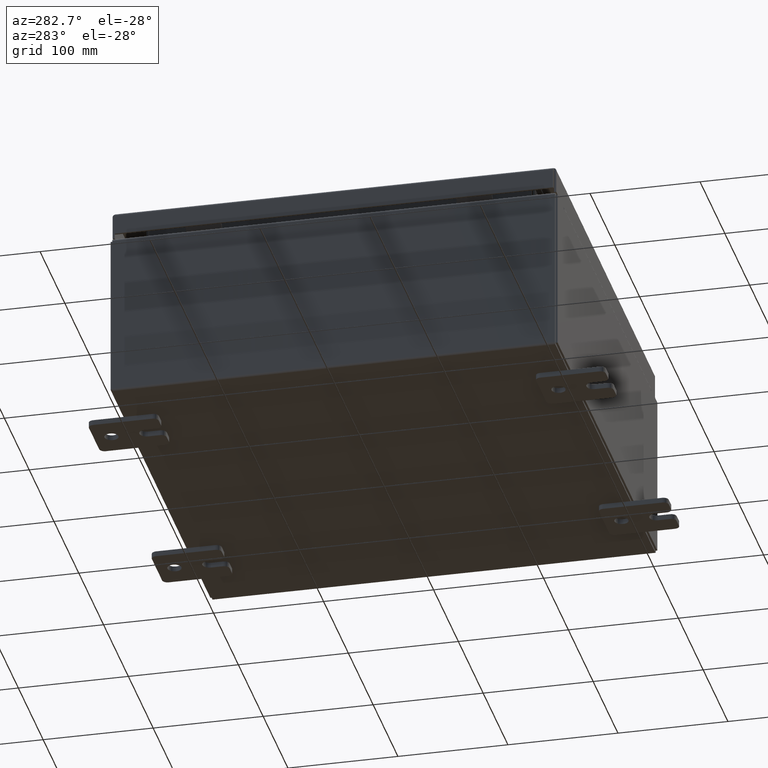
[diagram: clean part render]
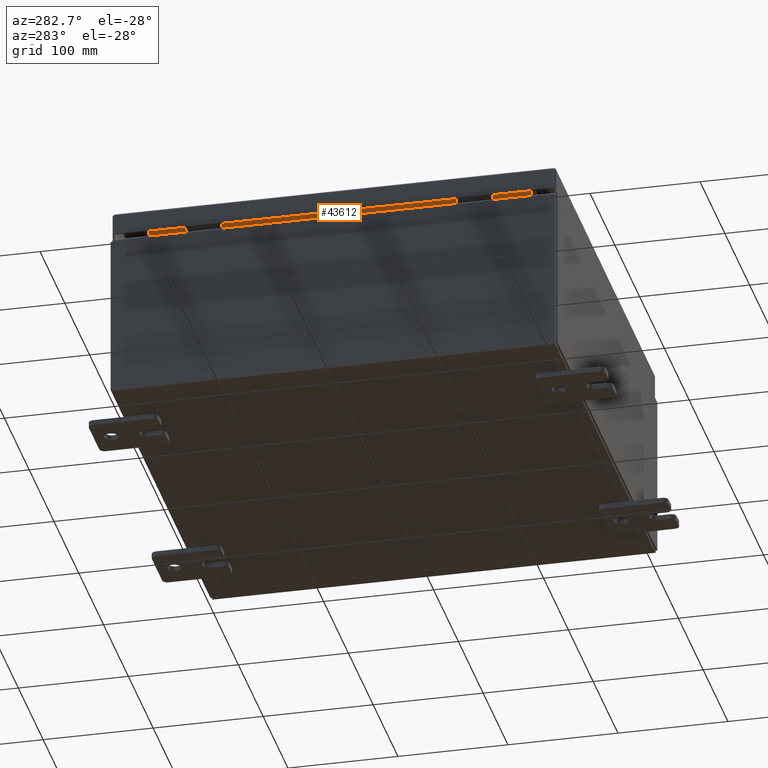
[diagram: same view with one face highlighted and labeled with its STEP entity id]
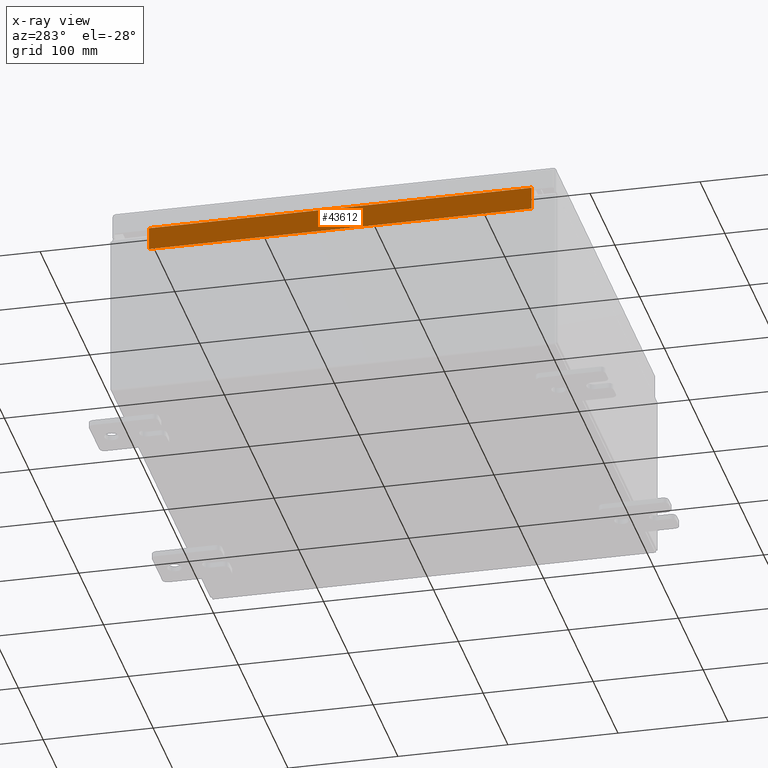
[diagram: x-ray of the same camera — body ghosted, the highlighted face saturated]
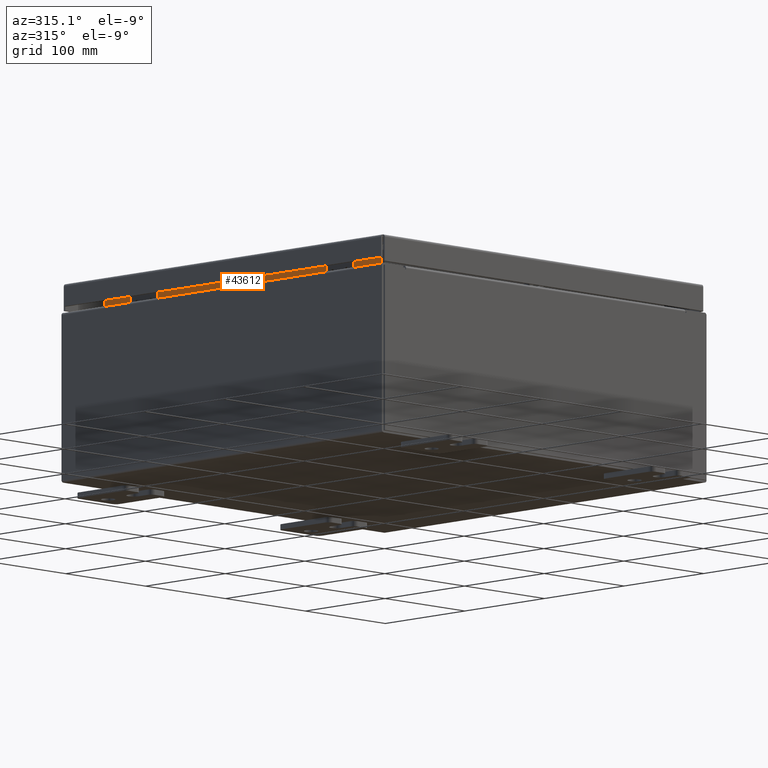
[diagram: same view with one face highlighted and labeled with its STEP entity id]
A machine part, auxiliary view. The second image highlights one B-rep face of the part: STEP entity #43612.
The next image is the same camera in x-ray: the body ghosted, the highlighted face saturated — about 0% of this face is hidden behind the body in this view.
A second angle (auxiliary view) of the same face is appended — the face is thin or edge-on in the first view.
In plain terms, the highlighted planar face has unit normal (-1, 0, -0).
Its self-contained STEP definition (entity closure, byte-faithful):
#488 = CARTESIAN_POINT ( 'NONE',  ( -6.949700000000021300, -6.843750000000000000, 5.938300000000007900 ) ) ;
#1161 = VERTEX_POINT ( 'NONE', #488 ) ;
#1829 = CARTESIAN_POINT ( 'NONE',  ( -6.949700000000025700, -6.843750000000000000, 6.762900000000006400 ) ) ;
#2110 = CARTESIAN_POINT ( 'NONE',  ( -6.949700000000021300, -6.843750000000000000, 5.938300000000007000 ) ) ;
#3063 = LINE ( 'NONE', #2110, #39536 ) ;
#3584 = DIRECTION ( 'NONE',  ( -0.0000000000000000000, -1.000000000000000000, -0.0000000000000000000 ) ) ;
#3662 = LINE ( 'NONE', #27291, #43130 ) ;
#6168 = CARTESIAN_POINT ( 'NONE',  ( -6.949700000000025700, 6.843750000000000000, 6.850600000000007100 ) ) ;
#6311 = EDGE_CURVE ( 'NONE', #19735, #34088, #16022, .T. ) ;
#13604 = LINE ( 'NONE', #36895, #37448 ) ;
#16022 = LINE ( 'NONE', #6168, #55619 ) ;
#16454 = DIRECTION ( 'NONE',  ( -7.983482721210634800E-017, 1.000000000000000000, 1.596696544242127000E-016 ) ) ;
#19735 = VERTEX_POINT ( 'NONE', #35290 ) ;
#21320 = PLANE ( 'NONE',  #40954 ) ;
#22275 = ORIENTED_EDGE ( 'NONE', *, *, #6311, .F. ) ;
#26107 = DIRECTION ( 'NONE',  ( -4.723826639860397600E-015, 0.0000000000000000000, 1.000000000000000000 ) ) ;
#27291 = CARTESIAN_POINT ( 'NONE',  ( -6.949700000000021300, -6.843750000000000000, 5.925300000000007100 ) ) ;
#27545 = FACE_OUTER_BOUND ( 'NONE', #36357, .T. ) ;
#33124 = EDGE_CURVE ( 'NONE', #34088, #42241, #13604, .T. ) ;
#34088 = VERTEX_POINT ( 'NONE', #53593 ) ;
#35290 = CARTESIAN_POINT ( 'NONE',  ( -6.949700000000021300, 6.843749999999996400, 5.938300000000007900 ) ) ;
#36357 = EDGE_LOOP ( 'NONE', ( #39180, #53343, #22275, #38341 ) ) ;
#36895 = CARTESIAN_POINT ( 'NONE',  ( -6.949700000000025700, 6.843750000000000000, 6.762900000000006400 ) ) ;
#37448 = VECTOR ( 'NONE', #3584, 39.37007874015748100 ) ;
#38341 = ORIENTED_EDGE ( 'NONE', *, *, #41841, .F. ) ;
#39180 = ORIENTED_EDGE ( 'NONE', *, *, #51256, .F. ) ;
#39536 = VECTOR ( 'NONE', #16454, 39.37007874015748100 ) ;
#40954 = AXIS2_PLACEMENT_3D ( 'NONE', #59281, #54679, #26107 ) ;
#41841 = EDGE_CURVE ( 'NONE', #1161, #19735, #3063, .T. ) ;
#42241 = VERTEX_POINT ( 'NONE', #1829 ) ;
#43130 = VECTOR ( 'NONE', #55880, 39.37007874015748100 ) ;
#43612 = ADVANCED_FACE ( 'NONE', ( #27545 ), #21320, .T. ) ;
#44280 = DIRECTION ( 'NONE',  ( -4.723826639860397600E-015, -0.0000000000000000000, 1.000000000000000000 ) ) ;
#51256 = EDGE_CURVE ( 'NONE', #42241, #1161, #3662, .T. ) ;
#53343 = ORIENTED_EDGE ( 'NONE', *, *, #33124, .F. ) ;
#53593 = CARTESIAN_POINT ( 'NONE',  ( -6.949700000000025700, 6.843750000000000000, 6.762900000000006400 ) ) ;
#54679 = DIRECTION ( 'NONE',  ( -1.000000000000000000, 3.771258835731996300E-031, -4.723826639860397600E-015 ) ) ;
#55619 = VECTOR ( 'NONE', #44280, 39.37007874015748100 ) ;
#55880 = DIRECTION ( 'NONE',  ( 4.723826639860392000E-015, -0.0000000000000000000, -1.000000000000000000 ) ) ;
#59281 = CARTESIAN_POINT ( 'NONE',  ( -6.949699999999992900, 2.620911753068662500E-030, -3.282917799903777300E-014 ) ) ;